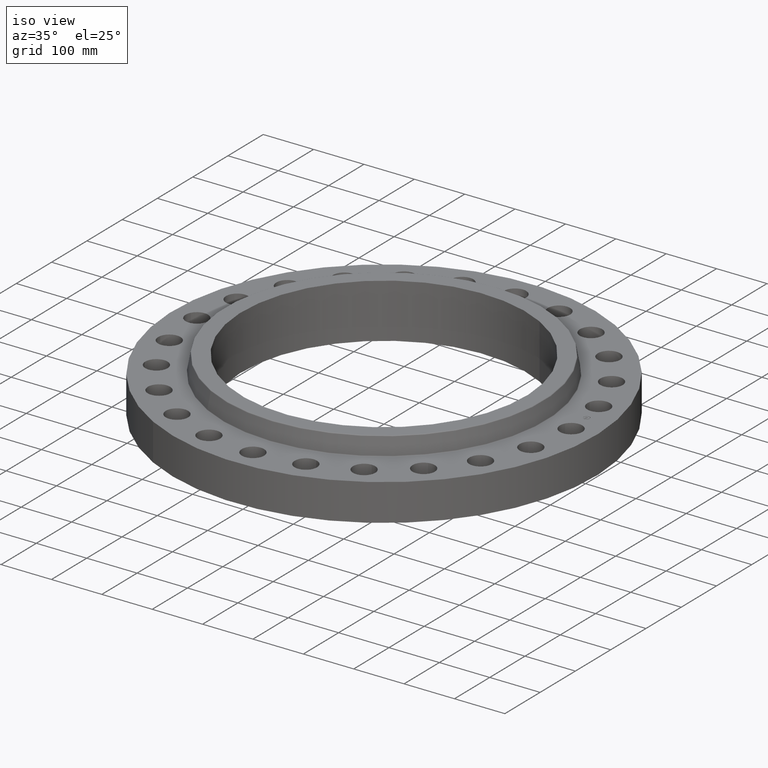
[diagram: clean part render]
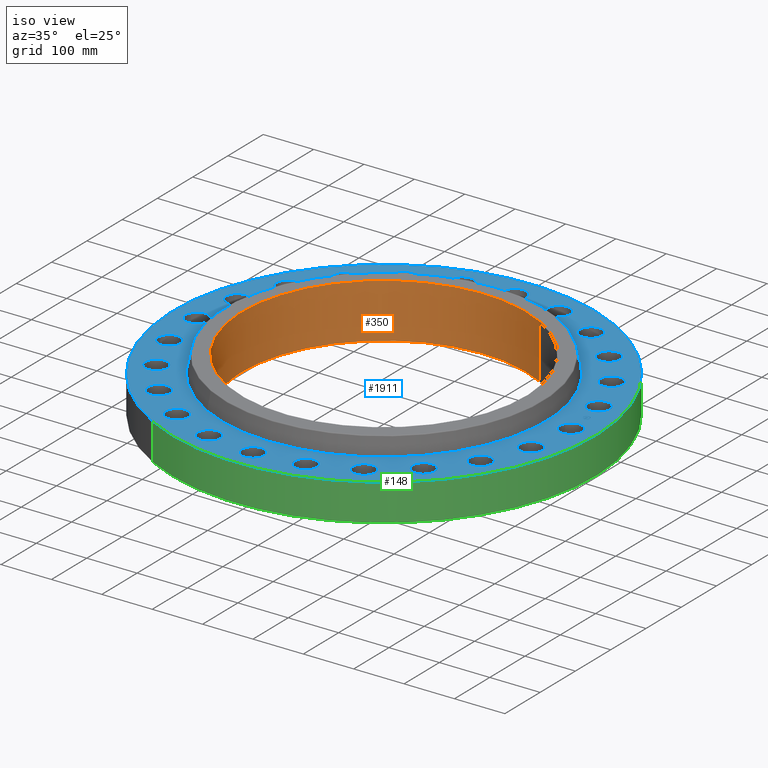
[diagram: same view with three faces highlighted in distinct colors, each labeled with its STEP entity id]
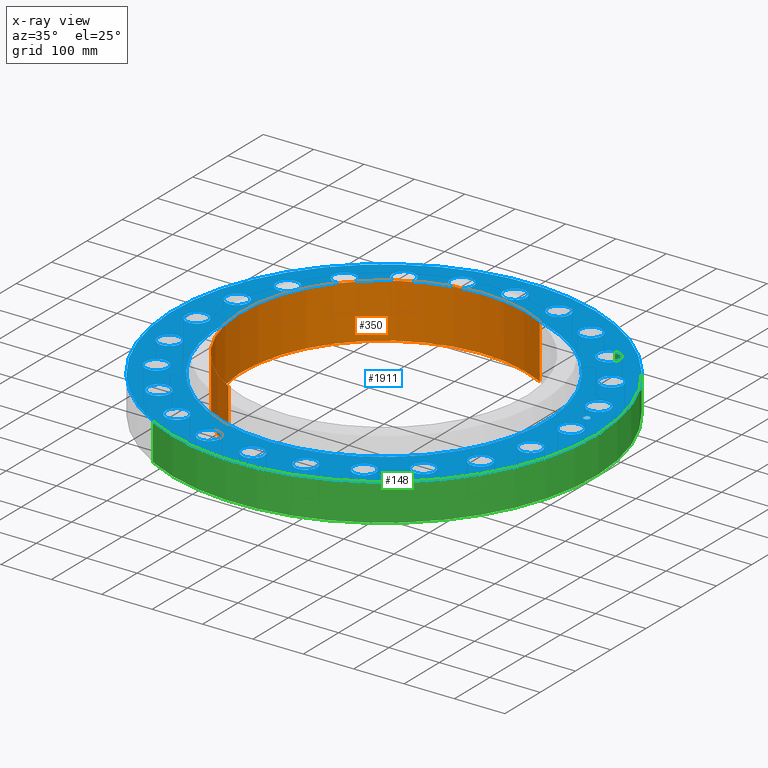
[diagram: x-ray of the same camera — body ghosted, the three highlighted faces saturated]
A machine part, iso view with three faces highlighted in distinct colors.
The next image is the same camera in x-ray (body ghosted, the three faces saturated) — at least one of them is partly hidden behind the body in this view.
Their STEP definitions:

[orange] entity #350 — the highlighted cylindrical surface (partial cylindrical patch) has radius 282.194 mm, axis along (0, 0, -1).
#303=AXIS2_PLACEMENT_3D('Circle Axis2P3D',#301,#302,$) ;
#323=AXIS2_PLACEMENT_3D('Cylinder Axis2P3D',#320,#321,#322) ;
#334=AXIS2_PLACEMENT_3D('Circle Axis2P3D',#332,#333,$) ;
#301=CARTESIAN_POINT('Axis2P3D Location',(0.,0.,4.25000000002)) ;
#305=CARTESIAN_POINT('Vertex',(-5.32641773391,-9.74994226264,4.25000000002)) ;
#307=CARTESIAN_POINT('Vertex',(5.32641773391,9.74994226264,4.25000000002)) ;
#320=CARTESIAN_POINT('Axis2P3D Location',(0.,0.,2.12500000001)) ;
#325=CARTESIAN_POINT('Line Origine',(-5.32641773391,-9.74994226264,2.12500000001)) ;
#329=CARTESIAN_POINT('Vertex',(-5.32641773391,-9.74994226264,-1.3707320493E-014)) ;
#332=CARTESIAN_POINT('Axis2P3D Location',(0.,0.,-1.45465441967E-014)) ;
#336=CARTESIAN_POINT('Vertex',(5.32641773391,9.74994226264,-1.3707320493E-014)) ;
#339=CARTESIAN_POINT('Line Origine',(5.32641773391,9.74994226264,2.12500000001)) ;
#302=DIRECTION('Axis2P3D Direction',(0.,0.,-0.0393700787402)) ;
#321=DIRECTION('Axis2P3D Direction',(0.,0.,-0.0393700787402)) ;
#322=DIRECTION('Axis2P3D XDirection',(0.0188750212049,0.0345504945626,0.)) ;
#326=DIRECTION('Vector Direction',(0.,0.,-0.0393700787402)) ;
#333=DIRECTION('Axis2P3D Direction',(0.,0.,-0.0393700787402)) ;
#340=DIRECTION('Vector Direction',(0.,0.,-0.0393700787402)) ;
#327=VECTOR('Line Direction',#326,0.0393700787402) ;
#341=VECTOR('Line Direction',#340,0.0393700787402) ;
#345=ORIENTED_EDGE('',*,*,#309,.F.) ;
#346=ORIENTED_EDGE('',*,*,#331,.T.) ;
#347=ORIENTED_EDGE('',*,*,#338,.T.) ;
#348=ORIENTED_EDGE('',*,*,#343,.F.) ;
#350=ADVANCED_FACE('PartBody',(#349),#324,.F.) ;
#304=CIRCLE('generated circle',#303,11.11) ;
#335=CIRCLE('generated circle',#334,11.11) ;
#324=CYLINDRICAL_SURFACE('generated cylinder',#323,11.11) ;
#309=EDGE_CURVE('',#306,#308,#304,.T.) ;
#331=EDGE_CURVE('',#306,#330,#328,.T.) ;
#338=EDGE_CURVE('',#330,#337,#335,.T.) ;
#343=EDGE_CURVE('',#308,#337,#342,.T.) ;
#344=EDGE_LOOP('',(#345,#346,#347,#348)) ;
#349=FACE_OUTER_BOUND('',#344,.T.) ;
#328=LINE('Line',#325,#327) ;
#342=LINE('Line',#339,#341) ;
#306=VERTEX_POINT('',#305) ;
#308=VERTEX_POINT('',#307) ;
#330=VERTEX_POINT('',#329) ;
#337=VERTEX_POINT('',#336) ;

[blue] entity #1911 — the highlighted planar face has unit normal (0, 0, -1).
#65=AXIS2_PLACEMENT_3D('Circle Axis2P3D',#63,#64,$) ;
#82=AXIS2_PLACEMENT_3D('Circle Axis2P3D',#80,#81,$) ;
#115=AXIS2_PLACEMENT_3D('Circle Axis2P3D',#113,#114,$) ;
#139=AXIS2_PLACEMENT_3D('Circle Axis2P3D',#137,#138,$) ;
#156=AXIS2_PLACEMENT_3D('Circle Axis2P3D',#154,#155,$) ;
#191=AXIS2_PLACEMENT_3D('Circle Axis2P3D',#189,#190,$) ;
#816=AXIS2_PLACEMENT_3D('Circle Axis2P3D',#814,#815,$) ;
#828=AXIS2_PLACEMENT_3D('Circle Axis2P3D',#826,#827,$) ;
#859=AXIS2_PLACEMENT_3D('Circle Axis2P3D',#857,#858,$) ;
#871=AXIS2_PLACEMENT_3D('Circle Axis2P3D',#869,#870,$) ;
#902=AXIS2_PLACEMENT_3D('Circle Axis2P3D',#900,#901,$) ;
#914=AXIS2_PLACEMENT_3D('Circle Axis2P3D',#912,#913,$) ;
#945=AXIS2_PLACEMENT_3D('Circle Axis2P3D',#943,#944,$) ;
#957=AXIS2_PLACEMENT_3D('Circle Axis2P3D',#955,#956,$) ;
#988=AXIS2_PLACEMENT_3D('Circle Axis2P3D',#986,#987,$) ;
#1000=AXIS2_PLACEMENT_3D('Circle Axis2P3D',#998,#999,$) ;
#1031=AXIS2_PLACEMENT_3D('Circle Axis2P3D',#1029,#1030,$) ;
#1043=AXIS2_PLACEMENT_3D('Circle Axis2P3D',#1041,#1042,$) ;
#1074=AXIS2_PLACEMENT_3D('Circle Axis2P3D',#1072,#1073,$) ;
#1086=AXIS2_PLACEMENT_3D('Circle Axis2P3D',#1084,#1085,$) ;
#1117=AXIS2_PLACEMENT_3D('Circle Axis2P3D',#1115,#1116,$) ;
#1129=AXIS2_PLACEMENT_3D('Circle Axis2P3D',#1127,#1128,$) ;
#1160=AXIS2_PLACEMENT_3D('Circle Axis2P3D',#1158,#1159,$) ;
#1172=AXIS2_PLACEMENT_3D('Circle Axis2P3D',#1170,#1171,$) ;
#1203=AXIS2_PLACEMENT_3D('Circle Axis2P3D',#1201,#1202,$) ;
#1215=AXIS2_PLACEMENT_3D('Circle Axis2P3D',#1213,#1214,$) ;
#1246=AXIS2_PLACEMENT_3D('Circle Axis2P3D',#1244,#1245,$) ;
#1258=AXIS2_PLACEMENT_3D('Circle Axis2P3D',#1256,#1257,$) ;
#1289=AXIS2_PLACEMENT_3D('Circle Axis2P3D',#1287,#1288,$) ;
#1301=AXIS2_PLACEMENT_3D('Circle Axis2P3D',#1299,#1300,$) ;
#1332=AXIS2_PLACEMENT_3D('Circle Axis2P3D',#1330,#1331,$) ;
#1344=AXIS2_PLACEMENT_3D('Circle Axis2P3D',#1342,#1343,$) ;
#1375=AXIS2_PLACEMENT_3D('Circle Axis2P3D',#1373,#1374,$) ;
#1387=AXIS2_PLACEMENT_3D('Circle Axis2P3D',#1385,#1386,$) ;
#1418=AXIS2_PLACEMENT_3D('Circle Axis2P3D',#1416,#1417,$) ;
#1430=AXIS2_PLACEMENT_3D('Circle Axis2P3D',#1428,#1429,$) ;
#1461=AXIS2_PLACEMENT_3D('Circle Axis2P3D',#1459,#1460,$) ;
#1473=AXIS2_PLACEMENT_3D('Circle Axis2P3D',#1471,#1472,$) ;
#1504=AXIS2_PLACEMENT_3D('Circle Axis2P3D',#1502,#1503,$) ;
#1516=AXIS2_PLACEMENT_3D('Circle Axis2P3D',#1514,#1515,$) ;
#1547=AXIS2_PLACEMENT_3D('Circle Axis2P3D',#1545,#1546,$) ;
#1559=AXIS2_PLACEMENT_3D('Circle Axis2P3D',#1557,#1558,$) ;
#1590=AXIS2_PLACEMENT_3D('Circle Axis2P3D',#1588,#1589,$) ;
#1602=AXIS2_PLACEMENT_3D('Circle Axis2P3D',#1600,#1601,$) ;
#1633=AXIS2_PLACEMENT_3D('Circle Axis2P3D',#1631,#1632,$) ;
#1645=AXIS2_PLACEMENT_3D('Circle Axis2P3D',#1643,#1644,$) ;
#1676=AXIS2_PLACEMENT_3D('Circle Axis2P3D',#1674,#1675,$) ;
#1688=AXIS2_PLACEMENT_3D('Circle Axis2P3D',#1686,#1687,$) ;
#1719=AXIS2_PLACEMENT_3D('Circle Axis2P3D',#1717,#1718,$) ;
#1731=AXIS2_PLACEMENT_3D('Circle Axis2P3D',#1729,#1730,$) ;
#1762=AXIS2_PLACEMENT_3D('Circle Axis2P3D',#1760,#1761,$) ;
#1774=AXIS2_PLACEMENT_3D('Circle Axis2P3D',#1772,#1773,$) ;
#1787=AXIS2_PLACEMENT_3D('Plane Axis2P3D',#1784,#1785,#1786) ;
#1895=AXIS2_PLACEMENT_3D('Circle Axis2P3D',#1893,#1894,$) ;
#1904=AXIS2_PLACEMENT_3D('Circle Axis2P3D',#1902,#1903,$) ;
#46=CARTESIAN_POINT('Vertex',(13.8571152584,0.41949734628,2.88000000001)) ;
#60=CARTESIAN_POINT('Vertex',(15.3928847417,-0.41949734628,2.88000000001)) ;
#63=CARTESIAN_POINT('Axis2P3D Location',(14.6250000001,0.,2.88000000001)) ;
#80=CARTESIAN_POINT('Axis2P3D Location',(14.6250000001,0.,2.88000000001)) ;
#110=CARTESIAN_POINT('Vertex',(-7.910521387,-14.4801122712,2.88000000001)) ;
#113=CARTESIAN_POINT('Axis2P3D Location',(0.,0.,2.88000000001)) ;
#117=CARTESIAN_POINT('Vertex',(7.910521387,14.4801122712,2.88000000001)) ;
#137=CARTESIAN_POINT('Axis2P3D Location',(0.,0.,2.88000000001)) ;
#154=CARTESIAN_POINT('Axis2P3D Location',(0.,0.,2.88000000001)) ;
#158=CARTESIAN_POINT('Vertex',(6.07688457246,11.1236625962,2.88000000001)) ;
#160=CARTESIAN_POINT('Vertex',(-6.07688457246,-11.1236625962,2.88000000001)) ;
#189=CARTESIAN_POINT('Axis2P3D Location',(0.,0.,2.88000000001)) ;
#804=CARTESIAN_POINT('Vertex',(-13.4935194085,3.18128201822,2.88000000001)) ;
#811=CARTESIAN_POINT('Vertex',(-14.7598110105,4.38917505106,2.88000000001)) ;
#814=CARTESIAN_POINT('Axis2P3D Location',(-14.1266652095,3.78522853464,2.88000000001)) ;
#826=CARTESIAN_POINT('Axis2P3D Location',(-14.1266652095,3.78522853464,2.88000000001)) ;
#847=CARTESIAN_POINT('Vertex',(12.2103625101,-6.5652622705,2.88000000001)) ;
#854=CARTESIAN_POINT('Vertex',(13.1208805507,-8.05973772956,2.88000000001)) ;
#857=CARTESIAN_POINT('Axis2P3D Location',(12.6656215304,-7.31250000003,2.88000000001)) ;
#869=CARTESIAN_POINT('Axis2P3D Location',(12.6656215304,-7.31250000003,2.88000000001)) ;
#890=CARTESIAN_POINT('Vertex',(-12.2103625101,6.5652622705,2.88000000001)) ;
#897=CARTESIAN_POINT('Vertex',(-13.1208805507,8.05973772956,2.88000000001)) ;
#900=CARTESIAN_POINT('Axis2P3D Location',(-12.6656215304,7.31250000003,2.88000000001)) ;
#912=CARTESIAN_POINT('Axis2P3D Location',(-12.6656215304,7.31250000003,2.88000000001)) ;
#933=CARTESIAN_POINT('Vertex',(10.0950895851,-9.50183074865,2.88000000001)) ;
#940=CARTESIAN_POINT('Vertex',(10.5877837646,-11.1810426011,2.88000000001)) ;
#943=CARTESIAN_POINT('Axis2P3D Location',(10.3414366749,-10.3414366749,2.88000000001)) ;
#955=CARTESIAN_POINT('Axis2P3D Location',(10.3414366749,-10.3414366749,2.88000000001)) ;
#976=CARTESIAN_POINT('Vertex',(-10.0950895851,9.50183074865,2.88000000001)) ;
#983=CARTESIAN_POINT('Vertex',(-10.5877837646,11.1810426011,2.88000000001)) ;
#986=CARTESIAN_POINT('Axis2P3D Location',(-10.3414366749,10.3414366749,2.88000000001)) ;
#998=CARTESIAN_POINT('Axis2P3D Location',(-10.3414366749,10.3414366749,2.88000000001)) ;
#1019=CARTESIAN_POINT('Vertex',(7.2918529879,-11.7908651638,2.88000000001)) ;
#1026=CARTESIAN_POINT('Vertex',(7.33314701216,-13.540377897,2.88000000001)) ;
#1029=CARTESIAN_POINT('Axis2P3D Location',(7.31250000003,-12.6656215304,2.88000000001)) ;
#1041=CARTESIAN_POINT('Axis2P3D Location',(7.31250000003,-12.6656215304,2.88000000001)) ;
#1062=CARTESIAN_POINT('Vertex',(-7.2918529879,11.7908651638,2.88000000001)) ;
#1069=CARTESIAN_POINT('Vertex',(-7.33314701216,13.540377897,2.88000000001)) ;
#1072=CARTESIAN_POINT('Axis2P3D Location',(-7.31250000003,12.6656215304,2.88000000001)) ;
#1084=CARTESIAN_POINT('Axis2P3D Location',(-7.31250000003,12.6656215304,2.88000000001)) ;
#1105=CARTESIAN_POINT('Vertex',(3.99168865989,-13.2763716034,2.88000000001)) ;
#1112=CARTESIAN_POINT('Vertex',(3.57876840939,-14.9769588157,2.88000000001)) ;
#1115=CARTESIAN_POINT('Axis2P3D Location',(3.78522853464,-14.1266652095,2.88000000001)) ;
#1127=CARTESIAN_POINT('Axis2P3D Location',(3.78522853464,-14.1266652095,2.88000000001)) ;
#1148=CARTESIAN_POINT('Vertex',(-3.99168865989,13.2763716034,2.88000000001)) ;
#1155=CARTESIAN_POINT('Vertex',(-3.57876840939,14.9769588157,2.88000000001)) ;
#1158=CARTESIAN_POINT('Axis2P3D Location',(-3.78522853464,14.1266652095,2.88000000001)) ;
#1170=CARTESIAN_POINT('Axis2P3D Location',(-3.78522853464,14.1266652095,2.88000000001)) ;
#1191=CARTESIAN_POINT('Vertex',(0.41949734628,-13.8571152584,2.88000000001)) ;
#1198=CARTESIAN_POINT('Vertex',(-0.41949734628,-15.3928847417,2.88000000001)) ;
#1201=CARTESIAN_POINT('Axis2P3D Location',(-1.34240690453E-015,-14.6250000001,2.88000000001)) ;
#1213=CARTESIAN_POINT('Axis2P3D Location',(-1.34240690453E-015,-14.6250000001,2.88000000001)) ;
#1234=CARTESIAN_POINT('Vertex',(-0.41949734628,13.8571152584,2.88000000001)) ;
#1241=CARTESIAN_POINT('Vertex',(0.41949734628,15.3928847417,2.88000000001)) ;
#1244=CARTESIAN_POINT('Axis2P3D Location',(-2.68656891564E-015,14.6250000001,2.88000000001)) ;
#1256=CARTESIAN_POINT('Axis2P3D Location',(-2.68656891564E-015,14.6250000001,2.88000000001)) ;
#1277=CARTESIAN_POINT('Vertex',(-3.18128201822,-13.4935194085,2.88000000001)) ;
#1284=CARTESIAN_POINT('Vertex',(-4.38917505106,-14.7598110105,2.88000000001)) ;
#1287=CARTESIAN_POINT('Axis2P3D Location',(-3.78522853464,-14.1266652095,2.88000000001)) ;
#1299=CARTESIAN_POINT('Axis2P3D Location',(-3.78522853464,-14.1266652095,2.88000000001)) ;
#1320=CARTESIAN_POINT('Vertex',(3.18128201822,13.4935194085,2.88000000001)) ;
#1327=CARTESIAN_POINT('Vertex',(4.38917505106,14.7598110105,2.88000000001)) ;
#1330=CARTESIAN_POINT('Axis2P3D Location',(3.78522853464,14.1266652095,2.88000000001)) ;
#1342=CARTESIAN_POINT('Axis2P3D Location',(3.78522853464,14.1266652095,2.88000000001)) ;
#1363=CARTESIAN_POINT('Vertex',(-6.5652622705,-12.2103625101,2.88000000001)) ;
#1370=CARTESIAN_POINT('Vertex',(-8.05973772956,-13.1208805507,2.88000000001)) ;
#1373=CARTESIAN_POINT('Axis2P3D Location',(-7.31250000003,-12.6656215304,2.88000000001)) ;
#1385=CARTESIAN_POINT('Axis2P3D Location',(-7.31250000003,-12.6656215304,2.88000000001)) ;
#1406=CARTESIAN_POINT('Vertex',(6.5652622705,12.2103625101,2.88000000001)) ;
#1413=CARTESIAN_POINT('Vertex',(8.05973772956,13.1208805507,2.88000000001)) ;
#1416=CARTESIAN_POINT('Axis2P3D Location',(7.31250000003,12.6656215304,2.88000000001)) ;
#1428=CARTESIAN_POINT('Axis2P3D Location',(7.31250000003,12.6656215304,2.88000000001)) ;
#1449=CARTESIAN_POINT('Vertex',(-9.50183074865,-10.0950895851,2.88000000001)) ;
#1456=CARTESIAN_POINT('Vertex',(-11.1810426011,-10.5877837646,2.88000000001)) ;
#1459=CARTESIAN_POINT('Axis2P3D Location',(-10.3414366749,-10.3414366749,2.88000000001)) ;
#1471=CARTESIAN_POINT('Axis2P3D Location',(-10.3414366749,-10.3414366749,2.88000000001)) ;
#1492=CARTESIAN_POINT('Vertex',(9.50183074865,10.0950895851,2.88000000001)) ;
#1499=CARTESIAN_POINT('Vertex',(11.1810426011,10.5877837646,2.88000000001)) ;
#1502=CARTESIAN_POINT('Axis2P3D Location',(10.3414366749,10.3414366749,2.88000000001)) ;
#1514=CARTESIAN_POINT('Axis2P3D Location',(10.3414366749,10.3414366749,2.88000000001)) ;
#1535=CARTESIAN_POINT('Vertex',(-11.7908651638,-7.2918529879,2.88000000001)) ;
#1542=CARTESIAN_POINT('Vertex',(-13.540377897,-7.33314701216,2.88000000001)) ;
#1545=CARTESIAN_POINT('Axis2P3D Location',(-12.6656215304,-7.31250000003,2.88000000001)) ;
#1557=CARTESIAN_POINT('Axis2P3D Location',(-12.6656215304,-7.31250000003,2.88000000001)) ;
#1578=CARTESIAN_POINT('Vertex',(11.7908651638,7.2918529879,2.88000000001)) ;
#1585=CARTESIAN_POINT('Vertex',(13.540377897,7.33314701216,2.88000000001)) ;
#1588=CARTESIAN_POINT('Axis2P3D Location',(12.6656215304,7.31250000003,2.88000000001)) ;
#1600=CARTESIAN_POINT('Axis2P3D Location',(12.6656215304,7.31250000003,2.88000000001)) ;
#1621=CARTESIAN_POINT('Vertex',(-13.2763716034,-3.99168865989,2.88000000001)) ;
#1628=CARTESIAN_POINT('Vertex',(-14.9769588157,-3.57876840939,2.88000000001)) ;
#1631=CARTESIAN_POINT('Axis2P3D Location',(-14.1266652095,-3.78522853464,2.88000000001)) ;
#1643=CARTESIAN_POINT('Axis2P3D Location',(-14.1266652095,-3.78522853464,2.88000000001)) ;
#1664=CARTESIAN_POINT('Vertex',(13.2763716034,3.99168865989,2.88000000001)) ;
#1671=CARTESIAN_POINT('Vertex',(14.9769588157,3.57876840939,2.88000000001)) ;
#1674=CARTESIAN_POINT('Axis2P3D Location',(14.1266652095,3.78522853464,2.88000000001)) ;
#1686=CARTESIAN_POINT('Axis2P3D Location',(14.1266652095,3.78522853464,2.88000000001)) ;
#1707=CARTESIAN_POINT('Vertex',(-13.8571152584,-0.41949734628,2.88000000001)) ;
#1714=CARTESIAN_POINT('Vertex',(-15.3928847417,0.41949734628,2.88000000001)) ;
#1717=CARTESIAN_POINT('Axis2P3D Location',(-14.6250000001,-1.79104594376E-015,2.88000000001)) ;
#1729=CARTESIAN_POINT('Axis2P3D Location',(-14.6250000001,-1.79104594376E-015,2.88000000001)) ;
#1750=CARTESIAN_POINT('Vertex',(13.4935194085,-3.18128201822,2.88000000001)) ;
#1757=CARTESIAN_POINT('Vertex',(14.7598110105,-4.38917505106,2.88000000001)) ;
#1760=CARTESIAN_POINT('Axis2P3D Location',(14.1266652095,-3.78522853464,2.88000000001)) ;
#1772=CARTESIAN_POINT('Axis2P3D Location',(14.1266652095,-3.78522853464,2.88000000001)) ;
#1784=CARTESIAN_POINT('Axis2P3D Location',(0.,16.5000000001,2.88000000001)) ;
#1893=CARTESIAN_POINT('Axis2P3D Location',(14.4998810976,1.90894556123,2.88000000001)) ;
#1897=CARTESIAN_POINT('Vertex',(14.4675758651,2.15432816442,2.88000000001)) ;
#1899=CARTESIAN_POINT('Vertex',(14.5321863302,1.66356295803,2.88000000001)) ;
#1902=CARTESIAN_POINT('Axis2P3D Location',(14.4998810976,1.90894556123,2.88000000001)) ;
#64=DIRECTION('Axis2P3D Direction',(0.,-0.,-0.0393700787402)) ;
#81=DIRECTION('Axis2P3D Direction',(0.,-0.,-0.0393700787402)) ;
#114=DIRECTION('Axis2P3D Direction',(0.,0.,-0.0393700787402)) ;
#138=DIRECTION('Axis2P3D Direction',(0.,0.,-0.0393700787402)) ;
#155=DIRECTION('Axis2P3D Direction',(0.,0.,-0.0393700787402)) ;
#190=DIRECTION('Axis2P3D Direction',(0.,0.,-0.0393700787402)) ;
#815=DIRECTION('Axis2P3D Direction',(0.,0.,-0.0393700787402)) ;
#827=DIRECTION('Axis2P3D Direction',(0.,0.,-0.0393700787402)) ;
#858=DIRECTION('Axis2P3D Direction',(0.,-0.,-0.0393700787402)) ;
#870=DIRECTION('Axis2P3D Direction',(0.,-0.,-0.0393700787402)) ;
#901=DIRECTION('Axis2P3D Direction',(0.,0.,-0.0393700787402)) ;
#913=DIRECTION('Axis2P3D Direction',(0.,0.,-0.0393700787402)) ;
#944=DIRECTION('Axis2P3D Direction',(0.,-0.,-0.0393700787402)) ;
#956=DIRECTION('Axis2P3D Direction',(0.,-0.,-0.0393700787402)) ;
#987=DIRECTION('Axis2P3D Direction',(0.,0.,-0.0393700787402)) ;
#999=DIRECTION('Axis2P3D Direction',(0.,0.,-0.0393700787402)) ;
#1030=DIRECTION('Axis2P3D Direction',(0.,-0.,-0.0393700787402)) ;
#1042=DIRECTION('Axis2P3D Direction',(0.,-0.,-0.0393700787402)) ;
#1073=DIRECTION('Axis2P3D Direction',(0.,0.,-0.0393700787402)) ;
#1085=DIRECTION('Axis2P3D Direction',(0.,0.,-0.0393700787402)) ;
#1116=DIRECTION('Axis2P3D Direction',(0.,-0.,-0.0393700787402)) ;
#1128=DIRECTION('Axis2P3D Direction',(0.,-0.,-0.0393700787402)) ;
#1159=DIRECTION('Axis2P3D Direction',(0.,0.,-0.0393700787402)) ;
#1171=DIRECTION('Axis2P3D Direction',(0.,0.,-0.0393700787402)) ;
#1202=DIRECTION('Axis2P3D Direction',(0.,-0.,-0.0393700787402)) ;
#1214=DIRECTION('Axis2P3D Direction',(0.,-0.,-0.0393700787402)) ;
#1245=DIRECTION('Axis2P3D Direction',(0.,0.,-0.0393700787402)) ;
#1257=DIRECTION('Axis2P3D Direction',(0.,0.,-0.0393700787402)) ;
#1288=DIRECTION('Axis2P3D Direction',(-0.,0.,-0.0393700787402)) ;
#1300=DIRECTION('Axis2P3D Direction',(-0.,0.,-0.0393700787402)) ;
#1331=DIRECTION('Axis2P3D Direction',(0.,0.,-0.0393700787402)) ;
#1343=DIRECTION('Axis2P3D Direction',(0.,0.,-0.0393700787402)) ;
#1374=DIRECTION('Axis2P3D Direction',(-0.,0.,-0.0393700787402)) ;
#1386=DIRECTION('Axis2P3D Direction',(-0.,0.,-0.0393700787402)) ;
#1417=DIRECTION('Axis2P3D Direction',(0.,0.,-0.0393700787402)) ;
#1429=DIRECTION('Axis2P3D Direction',(0.,0.,-0.0393700787402)) ;
#1460=DIRECTION('Axis2P3D Direction',(-0.,0.,-0.0393700787402)) ;
#1472=DIRECTION('Axis2P3D Direction',(-0.,0.,-0.0393700787402)) ;
#1503=DIRECTION('Axis2P3D Direction',(0.,0.,-0.0393700787402)) ;
#1515=DIRECTION('Axis2P3D Direction',(0.,0.,-0.0393700787402)) ;
#1546=DIRECTION('Axis2P3D Direction',(-0.,0.,-0.0393700787402)) ;
#1558=DIRECTION('Axis2P3D Direction',(-0.,0.,-0.0393700787402)) ;
#1589=DIRECTION('Axis2P3D Direction',(0.,0.,-0.0393700787402)) ;
#1601=DIRECTION('Axis2P3D Direction',(0.,0.,-0.0393700787402)) ;
#1632=DIRECTION('Axis2P3D Direction',(-0.,0.,-0.0393700787402)) ;
#1644=DIRECTION('Axis2P3D Direction',(-0.,0.,-0.0393700787402)) ;
#1675=DIRECTION('Axis2P3D Direction',(0.,0.,-0.0393700787402)) ;
#1687=DIRECTION('Axis2P3D Direction',(0.,0.,-0.0393700787402)) ;
#1718=DIRECTION('Axis2P3D Direction',(-0.,0.,-0.0393700787402)) ;
#1730=DIRECTION('Axis2P3D Direction',(-0.,0.,-0.0393700787402)) ;
#1761=DIRECTION('Axis2P3D Direction',(0.,-0.,-0.0393700787402)) ;
#1773=DIRECTION('Axis2P3D Direction',(0.,-0.,-0.0393700787402)) ;
#1785=DIRECTION('Axis2P3D Direction',(0.,0.,-0.0393700787402)) ;
#1786=DIRECTION('Axis2P3D XDirection',(0.0393700787402,0.,0.)) ;
#1894=DIRECTION('Axis2P3D Direction',(0.,0.,-0.0393700787402)) ;
#1903=DIRECTION('Axis2P3D Direction',(0.,0.,-0.0393700787402)) ;
#1790=ORIENTED_EDGE('',*,*,#141,.F.) ;
#1791=ORIENTED_EDGE('',*,*,#119,.F.) ;
#1794=ORIENTED_EDGE('',*,*,#67,.T.) ;
#1795=ORIENTED_EDGE('',*,*,#84,.T.) ;
#1798=ORIENTED_EDGE('',*,*,#193,.T.) ;
#1799=ORIENTED_EDGE('',*,*,#162,.T.) ;
#1802=ORIENTED_EDGE('',*,*,#1776,.T.) ;
#1803=ORIENTED_EDGE('',*,*,#1764,.T.) ;
#1806=ORIENTED_EDGE('',*,*,#873,.T.) ;
#1807=ORIENTED_EDGE('',*,*,#861,.T.) ;
#1810=ORIENTED_EDGE('',*,*,#959,.T.) ;
#1811=ORIENTED_EDGE('',*,*,#947,.T.) ;
#1814=ORIENTED_EDGE('',*,*,#1045,.T.) ;
#1815=ORIENTED_EDGE('',*,*,#1033,.T.) ;
#1818=ORIENTED_EDGE('',*,*,#1131,.T.) ;
#1819=ORIENTED_EDGE('',*,*,#1119,.T.) ;
#1822=ORIENTED_EDGE('',*,*,#1217,.T.) ;
#1823=ORIENTED_EDGE('',*,*,#1205,.T.) ;
#1826=ORIENTED_EDGE('',*,*,#1303,.T.) ;
#1827=ORIENTED_EDGE('',*,*,#1291,.T.) ;
#1830=ORIENTED_EDGE('',*,*,#1389,.T.) ;
#1831=ORIENTED_EDGE('',*,*,#1377,.T.) ;
#1834=ORIENTED_EDGE('',*,*,#1475,.T.) ;
#1835=ORIENTED_EDGE('',*,*,#1463,.T.) ;
#1838=ORIENTED_EDGE('',*,*,#1561,.T.) ;
#1839=ORIENTED_EDGE('',*,*,#1549,.T.) ;
#1842=ORIENTED_EDGE('',*,*,#1647,.T.) ;
#1843=ORIENTED_EDGE('',*,*,#1635,.T.) ;
#1846=ORIENTED_EDGE('',*,*,#1733,.T.) ;
#1847=ORIENTED_EDGE('',*,*,#1721,.T.) ;
#1850=ORIENTED_EDGE('',*,*,#830,.T.) ;
#1851=ORIENTED_EDGE('',*,*,#818,.T.) ;
#1854=ORIENTED_EDGE('',*,*,#916,.T.) ;
#1855=ORIENTED_EDGE('',*,*,#904,.T.) ;
#1858=ORIENTED_EDGE('',*,*,#1002,.T.) ;
#1859=ORIENTED_EDGE('',*,*,#990,.T.) ;
#1862=ORIENTED_EDGE('',*,*,#1088,.T.) ;
#1863=ORIENTED_EDGE('',*,*,#1076,.T.) ;
#1866=ORIENTED_EDGE('',*,*,#1174,.T.) ;
#1867=ORIENTED_EDGE('',*,*,#1162,.T.) ;
#1870=ORIENTED_EDGE('',*,*,#1260,.T.) ;
#1871=ORIENTED_EDGE('',*,*,#1248,.T.) ;
#1874=ORIENTED_EDGE('',*,*,#1346,.T.) ;
#1875=ORIENTED_EDGE('',*,*,#1334,.T.) ;
#1878=ORIENTED_EDGE('',*,*,#1432,.T.) ;
#1879=ORIENTED_EDGE('',*,*,#1420,.T.) ;
#1882=ORIENTED_EDGE('',*,*,#1518,.T.) ;
#1883=ORIENTED_EDGE('',*,*,#1506,.T.) ;
#1886=ORIENTED_EDGE('',*,*,#1604,.T.) ;
#1887=ORIENTED_EDGE('',*,*,#1592,.T.) ;
#1890=ORIENTED_EDGE('',*,*,#1690,.T.) ;
#1891=ORIENTED_EDGE('',*,*,#1678,.T.) ;
#1908=ORIENTED_EDGE('',*,*,#1901,.T.) ;
#1909=ORIENTED_EDGE('',*,*,#1906,.T.) ;
#1796=FACE_BOUND('',#1793,.T.) ;
#1800=FACE_BOUND('',#1797,.T.) ;
#1804=FACE_BOUND('',#1801,.T.) ;
#1808=FACE_BOUND('',#1805,.T.) ;
#1812=FACE_BOUND('',#1809,.T.) ;
#1816=FACE_BOUND('',#1813,.T.) ;
#1820=FACE_BOUND('',#1817,.T.) ;
#1824=FACE_BOUND('',#1821,.T.) ;
#1828=FACE_BOUND('',#1825,.T.) ;
#1832=FACE_BOUND('',#1829,.T.) ;
#1836=FACE_BOUND('',#1833,.T.) ;
#1840=FACE_BOUND('',#1837,.T.) ;
#1844=FACE_BOUND('',#1841,.T.) ;
#1848=FACE_BOUND('',#1845,.T.) ;
#1852=FACE_BOUND('',#1849,.T.) ;
#1856=FACE_BOUND('',#1853,.T.) ;
#1860=FACE_BOUND('',#1857,.T.) ;
#1864=FACE_BOUND('',#1861,.T.) ;
#1868=FACE_BOUND('',#1865,.T.) ;
#1872=FACE_BOUND('',#1869,.T.) ;
#1876=FACE_BOUND('',#1873,.T.) ;
#1880=FACE_BOUND('',#1877,.T.) ;
#1884=FACE_BOUND('',#1881,.T.) ;
#1888=FACE_BOUND('',#1885,.T.) ;
#1892=FACE_BOUND('',#1889,.T.) ;
#1910=FACE_BOUND('',#1907,.T.) ;
#1911=ADVANCED_FACE('PartBody',(#1792,#1796,#1800,#1804,#1808,#1812,#1816,#1820,#1824,#1828,#1832,#1836,#1840,#1844,#1848,#1852,#1856,#1860,#1864,#1868,#1872,#1876,#1880,#1884,#1888,#1892,#1910),#1788,.F.) ;
#66=CIRCLE('generated circle',#65,0.875000000004) ;
#83=CIRCLE('generated circle',#82,0.875000000004) ;
#116=CIRCLE('generated circle',#115,16.5000000001) ;
#140=CIRCLE('generated circle',#139,16.5000000001) ;
#157=CIRCLE('generated circle',#156,12.6753459779) ;
#192=CIRCLE('generated circle',#191,12.6753459779) ;
#817=CIRCLE('generated circle',#816,0.875000000004) ;
#829=CIRCLE('generated circle',#828,0.875000000004) ;
#860=CIRCLE('generated circle',#859,0.875000000003) ;
#872=CIRCLE('generated circle',#871,0.875000000003) ;
#903=CIRCLE('generated circle',#902,0.875000000003) ;
#915=CIRCLE('generated circle',#914,0.875000000003) ;
#946=CIRCLE('generated circle',#945,0.875000000004) ;
#958=CIRCLE('generated circle',#957,0.875000000004) ;
#989=CIRCLE('generated circle',#988,0.875000000004) ;
#1001=CIRCLE('generated circle',#1000,0.875000000004) ;
#1032=CIRCLE('generated circle',#1031,0.875000000003) ;
#1044=CIRCLE('generated circle',#1043,0.875000000003) ;
#1075=CIRCLE('generated circle',#1074,0.875000000003) ;
#1087=CIRCLE('generated circle',#1086,0.875000000003) ;
#1118=CIRCLE('generated circle',#1117,0.875000000004) ;
#1130=CIRCLE('generated circle',#1129,0.875000000004) ;
#1161=CIRCLE('generated circle',#1160,0.875000000004) ;
#1173=CIRCLE('generated circle',#1172,0.875000000004) ;
#1204=CIRCLE('generated circle',#1203,0.875000000004) ;
#1216=CIRCLE('generated circle',#1215,0.875000000004) ;
#1247=CIRCLE('generated circle',#1246,0.875000000004) ;
#1259=CIRCLE('generated circle',#1258,0.875000000004) ;
#1290=CIRCLE('generated circle',#1289,0.875000000004) ;
#1302=CIRCLE('generated circle',#1301,0.875000000004) ;
#1333=CIRCLE('generated circle',#1332,0.875000000004) ;
#1345=CIRCLE('generated circle',#1344,0.875000000004) ;
#1376=CIRCLE('generated circle',#1375,0.875000000003) ;
#1388=CIRCLE('generated circle',#1387,0.875000000003) ;
#1419=CIRCLE('generated circle',#1418,0.875000000003) ;
#1431=CIRCLE('generated circle',#1430,0.875000000003) ;
#1462=CIRCLE('generated circle',#1461,0.875000000004) ;
#1474=CIRCLE('generated circle',#1473,0.875000000004) ;
#1505=CIRCLE('generated circle',#1504,0.875000000004) ;
#1517=CIRCLE('generated circle',#1516,0.875000000004) ;
#1548=CIRCLE('generated circle',#1547,0.875000000003) ;
#1560=CIRCLE('generated circle',#1559,0.875000000003) ;
#1591=CIRCLE('generated circle',#1590,0.875000000003) ;
#1603=CIRCLE('generated circle',#1602,0.875000000003) ;
#1634=CIRCLE('generated circle',#1633,0.875000000004) ;
#1646=CIRCLE('generated circle',#1645,0.875000000004) ;
#1677=CIRCLE('generated circle',#1676,0.875000000004) ;
#1689=CIRCLE('generated circle',#1688,0.875000000004) ;
#1720=CIRCLE('generated circle',#1719,0.875000000004) ;
#1732=CIRCLE('generated circle',#1731,0.875000000004) ;
#1763=CIRCLE('generated circle',#1762,0.875000000004) ;
#1775=CIRCLE('generated circle',#1774,0.875000000004) ;
#1896=CIRCLE('generated circle',#1895,0.247500000001) ;
#1905=CIRCLE('generated circle',#1904,0.247500000001) ;
#67=EDGE_CURVE('',#47,#61,#66,.T.) ;
#84=EDGE_CURVE('',#61,#47,#83,.T.) ;
#119=EDGE_CURVE('',#111,#118,#116,.T.) ;
#141=EDGE_CURVE('',#118,#111,#140,.T.) ;
#162=EDGE_CURVE('',#159,#161,#157,.T.) ;
#193=EDGE_CURVE('',#161,#159,#192,.T.) ;
#818=EDGE_CURVE('',#805,#812,#817,.T.) ;
#830=EDGE_CURVE('',#812,#805,#829,.T.) ;
#861=EDGE_CURVE('',#848,#855,#860,.T.) ;
#873=EDGE_CURVE('',#855,#848,#872,.T.) ;
#904=EDGE_CURVE('',#891,#898,#903,.T.) ;
#916=EDGE_CURVE('',#898,#891,#915,.T.) ;
#947=EDGE_CURVE('',#934,#941,#946,.T.) ;
#959=EDGE_CURVE('',#941,#934,#958,.T.) ;
#990=EDGE_CURVE('',#977,#984,#989,.T.) ;
#1002=EDGE_CURVE('',#984,#977,#1001,.T.) ;
#1033=EDGE_CURVE('',#1020,#1027,#1032,.T.) ;
#1045=EDGE_CURVE('',#1027,#1020,#1044,.T.) ;
#1076=EDGE_CURVE('',#1063,#1070,#1075,.T.) ;
#1088=EDGE_CURVE('',#1070,#1063,#1087,.T.) ;
#1119=EDGE_CURVE('',#1106,#1113,#1118,.T.) ;
#1131=EDGE_CURVE('',#1113,#1106,#1130,.T.) ;
#1162=EDGE_CURVE('',#1149,#1156,#1161,.T.) ;
#1174=EDGE_CURVE('',#1156,#1149,#1173,.T.) ;
#1205=EDGE_CURVE('',#1192,#1199,#1204,.T.) ;
#1217=EDGE_CURVE('',#1199,#1192,#1216,.T.) ;
#1248=EDGE_CURVE('',#1235,#1242,#1247,.T.) ;
#1260=EDGE_CURVE('',#1242,#1235,#1259,.T.) ;
#1291=EDGE_CURVE('',#1278,#1285,#1290,.T.) ;
#1303=EDGE_CURVE('',#1285,#1278,#1302,.T.) ;
#1334=EDGE_CURVE('',#1321,#1328,#1333,.T.) ;
#1346=EDGE_CURVE('',#1328,#1321,#1345,.T.) ;
#1377=EDGE_CURVE('',#1364,#1371,#1376,.T.) ;
#1389=EDGE_CURVE('',#1371,#1364,#1388,.T.) ;
#1420=EDGE_CURVE('',#1407,#1414,#1419,.T.) ;
#1432=EDGE_CURVE('',#1414,#1407,#1431,.T.) ;
#1463=EDGE_CURVE('',#1450,#1457,#1462,.T.) ;
#1475=EDGE_CURVE('',#1457,#1450,#1474,.T.) ;
#1506=EDGE_CURVE('',#1493,#1500,#1505,.T.) ;
#1518=EDGE_CURVE('',#1500,#1493,#1517,.T.) ;
#1549=EDGE_CURVE('',#1536,#1543,#1548,.T.) ;
#1561=EDGE_CURVE('',#1543,#1536,#1560,.T.) ;
#1592=EDGE_CURVE('',#1579,#1586,#1591,.T.) ;
#1604=EDGE_CURVE('',#1586,#1579,#1603,.T.) ;
#1635=EDGE_CURVE('',#1622,#1629,#1634,.T.) ;
#1647=EDGE_CURVE('',#1629,#1622,#1646,.T.) ;
#1678=EDGE_CURVE('',#1665,#1672,#1677,.T.) ;
#1690=EDGE_CURVE('',#1672,#1665,#1689,.T.) ;
#1721=EDGE_CURVE('',#1708,#1715,#1720,.T.) ;
#1733=EDGE_CURVE('',#1715,#1708,#1732,.T.) ;
#1764=EDGE_CURVE('',#1751,#1758,#1763,.T.) ;
#1776=EDGE_CURVE('',#1758,#1751,#1775,.T.) ;
#1901=EDGE_CURVE('',#1898,#1900,#1896,.T.) ;
#1906=EDGE_CURVE('',#1900,#1898,#1905,.T.) ;
#1789=EDGE_LOOP('',(#1790,#1791)) ;
#1793=EDGE_LOOP('',(#1794,#1795)) ;
#1797=EDGE_LOOP('',(#1798,#1799)) ;
#1801=EDGE_LOOP('',(#1802,#1803)) ;
#1805=EDGE_LOOP('',(#1806,#1807)) ;
#1809=EDGE_LOOP('',(#1810,#1811)) ;
#1813=EDGE_LOOP('',(#1814,#1815)) ;
#1817=EDGE_LOOP('',(#1818,#1819)) ;
#1821=EDGE_LOOP('',(#1822,#1823)) ;
#1825=EDGE_LOOP('',(#1826,#1827)) ;
#1829=EDGE_LOOP('',(#1830,#1831)) ;
#1833=EDGE_LOOP('',(#1834,#1835)) ;
#1837=EDGE_LOOP('',(#1838,#1839)) ;
#1841=EDGE_LOOP('',(#1842,#1843)) ;
#1845=EDGE_LOOP('',(#1846,#1847)) ;
#1849=EDGE_LOOP('',(#1850,#1851)) ;
#1853=EDGE_LOOP('',(#1854,#1855)) ;
#1857=EDGE_LOOP('',(#1858,#1859)) ;
#1861=EDGE_LOOP('',(#1862,#1863)) ;
#1865=EDGE_LOOP('',(#1866,#1867)) ;
#1869=EDGE_LOOP('',(#1870,#1871)) ;
#1873=EDGE_LOOP('',(#1874,#1875)) ;
#1877=EDGE_LOOP('',(#1878,#1879)) ;
#1881=EDGE_LOOP('',(#1882,#1883)) ;
#1885=EDGE_LOOP('',(#1886,#1887)) ;
#1889=EDGE_LOOP('',(#1890,#1891)) ;
#1907=EDGE_LOOP('',(#1908,#1909)) ;
#1792=FACE_OUTER_BOUND('',#1789,.T.) ;
#1788=PLANE('',#1787) ;
#47=VERTEX_POINT('',#46) ;
#61=VERTEX_POINT('',#60) ;
#111=VERTEX_POINT('',#110) ;
#118=VERTEX_POINT('',#117) ;
#159=VERTEX_POINT('',#158) ;
#161=VERTEX_POINT('',#160) ;
#805=VERTEX_POINT('',#804) ;
#812=VERTEX_POINT('',#811) ;
#848=VERTEX_POINT('',#847) ;
#855=VERTEX_POINT('',#854) ;
#891=VERTEX_POINT('',#890) ;
#898=VERTEX_POINT('',#897) ;
#934=VERTEX_POINT('',#933) ;
#941=VERTEX_POINT('',#940) ;
#977=VERTEX_POINT('',#976) ;
#984=VERTEX_POINT('',#983) ;
#1020=VERTEX_POINT('',#1019) ;
#1027=VERTEX_POINT('',#1026) ;
#1063=VERTEX_POINT('',#1062) ;
#1070=VERTEX_POINT('',#1069) ;
#1106=VERTEX_POINT('',#1105) ;
#1113=VERTEX_POINT('',#1112) ;
#1149=VERTEX_POINT('',#1148) ;
#1156=VERTEX_POINT('',#1155) ;
#1192=VERTEX_POINT('',#1191) ;
#1199=VERTEX_POINT('',#1198) ;
#1235=VERTEX_POINT('',#1234) ;
#1242=VERTEX_POINT('',#1241) ;
#1278=VERTEX_POINT('',#1277) ;
#1285=VERTEX_POINT('',#1284) ;
#1321=VERTEX_POINT('',#1320) ;
#1328=VERTEX_POINT('',#1327) ;
#1364=VERTEX_POINT('',#1363) ;
#1371=VERTEX_POINT('',#1370) ;
#1407=VERTEX_POINT('',#1406) ;
#1414=VERTEX_POINT('',#1413) ;
#1450=VERTEX_POINT('',#1449) ;
#1457=VERTEX_POINT('',#1456) ;
#1493=VERTEX_POINT('',#1492) ;
#1500=VERTEX_POINT('',#1499) ;
#1536=VERTEX_POINT('',#1535) ;
#1543=VERTEX_POINT('',#1542) ;
#1579=VERTEX_POINT('',#1578) ;
#1586=VERTEX_POINT('',#1585) ;
#1622=VERTEX_POINT('',#1621) ;
#1629=VERTEX_POINT('',#1628) ;
#1665=VERTEX_POINT('',#1664) ;
#1672=VERTEX_POINT('',#1671) ;
#1708=VERTEX_POINT('',#1707) ;
#1715=VERTEX_POINT('',#1714) ;
#1751=VERTEX_POINT('',#1750) ;
#1758=VERTEX_POINT('',#1757) ;
#1898=VERTEX_POINT('',#1897) ;
#1900=VERTEX_POINT('',#1899) ;

[green] entity #148 — the highlighted cylindrical surface (partial cylindrical patch) has radius 419.1 mm, axis along (0, 0, -1).
#95=AXIS2_PLACEMENT_3D('Cylinder Axis2P3D',#92,#93,#94) ;
#134=AXIS2_PLACEMENT_3D('Circle Axis2P3D',#132,#133,$) ;
#139=AXIS2_PLACEMENT_3D('Circle Axis2P3D',#137,#138,$) ;
#92=CARTESIAN_POINT('Axis2P3D Location',(0.,0.,2.12500000001)) ;
#101=CARTESIAN_POINT('Vertex',(-7.910521387,-14.4801122712,1.67844740731E-015)) ;
#103=CARTESIAN_POINT('Vertex',(7.910521387,14.4801122712,1.67844740731E-015)) ;
#106=CARTESIAN_POINT('Line Origine',(-7.910521387,-14.4801122712,1.44000000001)) ;
#110=CARTESIAN_POINT('Vertex',(-7.910521387,-14.4801122712,2.88000000001)) ;
#117=CARTESIAN_POINT('Vertex',(7.910521387,14.4801122712,2.88000000001)) ;
#120=CARTESIAN_POINT('Line Origine',(7.910521387,14.4801122712,1.44000000001)) ;
#132=CARTESIAN_POINT('Axis2P3D Location',(0.,0.,1.95818864186E-015)) ;
#137=CARTESIAN_POINT('Axis2P3D Location',(0.,0.,2.88000000001)) ;
#93=DIRECTION('Axis2P3D Direction',(0.,0.,-0.0393700787402)) ;
#94=DIRECTION('Axis2P3D XDirection',(0.0188750212049,0.0345504945626,0.)) ;
#107=DIRECTION('Vector Direction',(0.,0.,-0.0393700787402)) ;
#121=DIRECTION('Vector Direction',(0.,0.,-0.0393700787402)) ;
#133=DIRECTION('Axis2P3D Direction',(0.,0.,-0.0393700787402)) ;
#138=DIRECTION('Axis2P3D Direction',(0.,0.,-0.0393700787402)) ;
#108=VECTOR('Line Direction',#107,0.0393700787402) ;
#122=VECTOR('Line Direction',#121,0.0393700787402) ;
#143=ORIENTED_EDGE('',*,*,#136,.F.) ;
#144=ORIENTED_EDGE('',*,*,#124,.T.) ;
#145=ORIENTED_EDGE('',*,*,#141,.T.) ;
#146=ORIENTED_EDGE('',*,*,#112,.F.) ;
#148=ADVANCED_FACE('PartBody',(#147),#96,.T.) ;
#135=CIRCLE('generated circle',#134,16.5000000001) ;
#140=CIRCLE('generated circle',#139,16.5000000001) ;
#96=CYLINDRICAL_SURFACE('generated cylinder',#95,16.5000000001) ;
#112=EDGE_CURVE('',#102,#111,#109,.F.) ;
#124=EDGE_CURVE('',#104,#118,#123,.F.) ;
#136=EDGE_CURVE('',#104,#102,#135,.T.) ;
#141=EDGE_CURVE('',#118,#111,#140,.T.) ;
#142=EDGE_LOOP('',(#143,#144,#145,#146)) ;
#147=FACE_OUTER_BOUND('',#142,.T.) ;
#109=LINE('Line',#106,#108) ;
#123=LINE('Line',#120,#122) ;
#102=VERTEX_POINT('',#101) ;
#104=VERTEX_POINT('',#103) ;
#111=VERTEX_POINT('',#110) ;
#118=VERTEX_POINT('',#117) ;